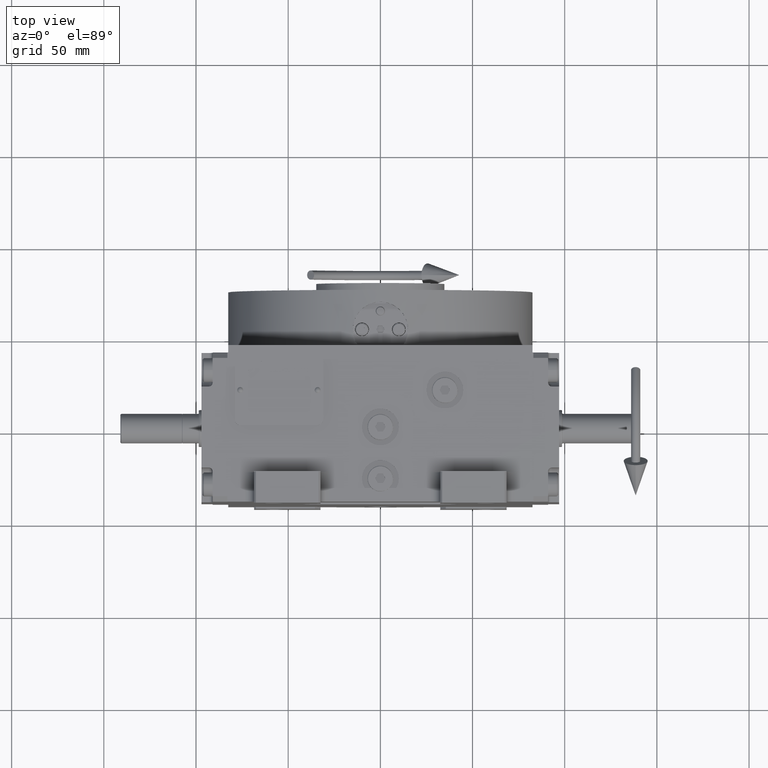
[diagram: clean part render]
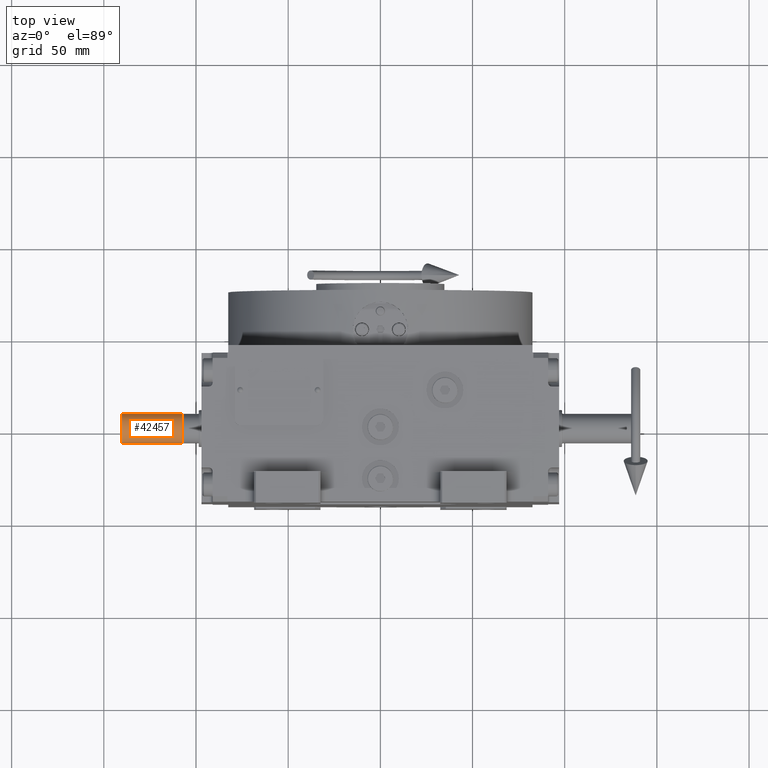
[diagram: same view with one face highlighted and labeled with its STEP entity id]
A machine part, top view. The second image highlights one B-rep face of the part: STEP entity #42457.
In plain terms, the highlighted cylindrical surface (edge-blend (fillet) strip) has radius 8 mm, axis along (-1, 0, -0).
Its self-contained STEP definition (entity closure, byte-faithful):
#758 = DIRECTION ( 'NONE',  ( 1.641985838700010046E-14, 0.000000000000000000, 1.000000000000000000 ) ) ;
#3419 = VERTEX_POINT ( 'NONE', #10243 ) ;
#4036 = ORIENTED_EDGE ( 'NONE', *, *, #40981, .F. ) ;
#5874 = CARTESIAN_POINT ( 'NONE',  ( -8.326672684688674053E-14, -14.50000000000001243, -8.881784197023324652E-16 ) ) ;
#6710 = VECTOR ( 'NONE', #11942, 1000.000000000000000 ) ;
#7052 = ORIENTED_EDGE ( 'NONE', *, *, #35302, .F. ) ;
#7828 = ORIENTED_EDGE ( 'NONE', *, *, #20157, .F. ) ;
#9254 = CARTESIAN_POINT ( 'NONE',  ( -8.326672684688674053E-14, -14.50000000000001243, -8.000000000000035527 ) ) ;
#10243 = CARTESIAN_POINT ( 'NONE',  ( 0.000000000000000000, 18.50000000000048672, 7.999999999999965361 ) ) ;
#11942 = DIRECTION ( 'NONE',  ( 4.634557818173444357E-30, 1.000000000000000000, 2.968504418126118906E-29 ) ) ;
#12599 = FACE_OUTER_BOUND ( 'NONE', #20366, .T. ) ;
#12724 = EDGE_CURVE ( 'NONE', #53257, #39222, #25671, .T. ) ;
#14298 = CARTESIAN_POINT ( 'NONE',  ( 1.065553201229363367E-08, -14.50000000007528556, 7.999999999924675365 ) ) ;
#15020 = CARTESIAN_POINT ( 'NONE',  ( 0.000000000000000000, 18.50000000000048672, -8.881784196997747809E-16 ) ) ;
#20157 = EDGE_CURVE ( 'NONE', #39222, #47608, #36981, .T. ) ;
#20366 = EDGE_LOOP ( 'NONE', ( #57893, #7052, #4036, #7828 ) ) ;
#22628 = CYLINDRICAL_SURFACE ( 'NONE', #34813, 8.000000000000000000 ) ;
#25635 = DIRECTION ( 'NONE',  ( -2.220446049250370273E-16, -1.000000000000000000, 2.220446049249983978E-16 ) ) ;
#25671 = LINE ( 'NONE', #46342, #42904 ) ;
#27480 = DIRECTION ( 'NONE',  ( -1.654232306691483561E-14, 0.000000000000000000, -1.000000000000000000 ) ) ;
#28710 = AXIS2_PLACEMENT_3D ( 'NONE', #5874, #25635, #55346 ) ;
#32983 = DIRECTION ( 'NONE',  ( -4.634557818173444357E-30, -1.000000000000000000, -2.968504418126118906E-29 ) ) ;
#34813 = AXIS2_PLACEMENT_3D ( 'NONE', #48131, #32983, #27480 ) ;
#35302 = EDGE_CURVE ( 'NONE', #3419, #53257, #57480, .T. ) ;
#36017 = DIRECTION ( 'NONE',  ( -4.634557818173444357E-30, -1.000000000000000000, -2.968504418126118906E-29 ) ) ;
#36534 = LINE ( 'NONE', #56221, #6710 ) ;
#36981 = CIRCLE ( 'NONE', #28710, 8.000000000000000000 ) ;
#39222 = VERTEX_POINT ( 'NONE', #9254 ) ;
#40981 = EDGE_CURVE ( 'NONE', #47608, #3419, #36534, .T. ) ;
#42457 = ADVANCED_FACE ( 'NONE', ( #12599 ), #22628, .T. ) ;
#42904 = VECTOR ( 'NONE', #36017, 1000.000000000000000 ) ;
#45074 = AXIS2_PLACEMENT_3D ( 'NONE', #15020, #63821, #758 ) ;
#46342 = CARTESIAN_POINT ( 'NONE',  ( -5.273559366969493567E-13, 18.50000000000048672, -8.000000000000035527 ) ) ;
#47608 = VERTEX_POINT ( 'NONE', #14298 ) ;
#48131 = CARTESIAN_POINT ( 'NONE',  ( -8.326672684688674053E-14, -15.00000000000001421, -2.847294829782089485E-27 ) ) ;
#52324 = CARTESIAN_POINT ( 'NONE',  ( -5.551115123125782702E-13, 18.50000000000048672, -8.000000000000035527 ) ) ;
#53257 = VERTEX_POINT ( 'NONE', #52324 ) ;
#55346 = DIRECTION ( 'NONE',  ( -1.618637140462284966E-14, -2.168404344971008868E-16, -1.000000000000000000 ) ) ;
#56221 = CARTESIAN_POINT ( 'NONE',  ( 1.221245327087672194E-12, -14.50000000000001243, 7.999999999999965361 ) ) ;
#57480 = CIRCLE ( 'NONE', #45074, 8.000000000000000000 ) ;
#57893 = ORIENTED_EDGE ( 'NONE', *, *, #12724, .F. ) ;
#63821 = DIRECTION ( 'NONE',  ( 4.634557818173444357E-30, 1.000000000000000000, 2.968504418126118906E-29 ) ) ;